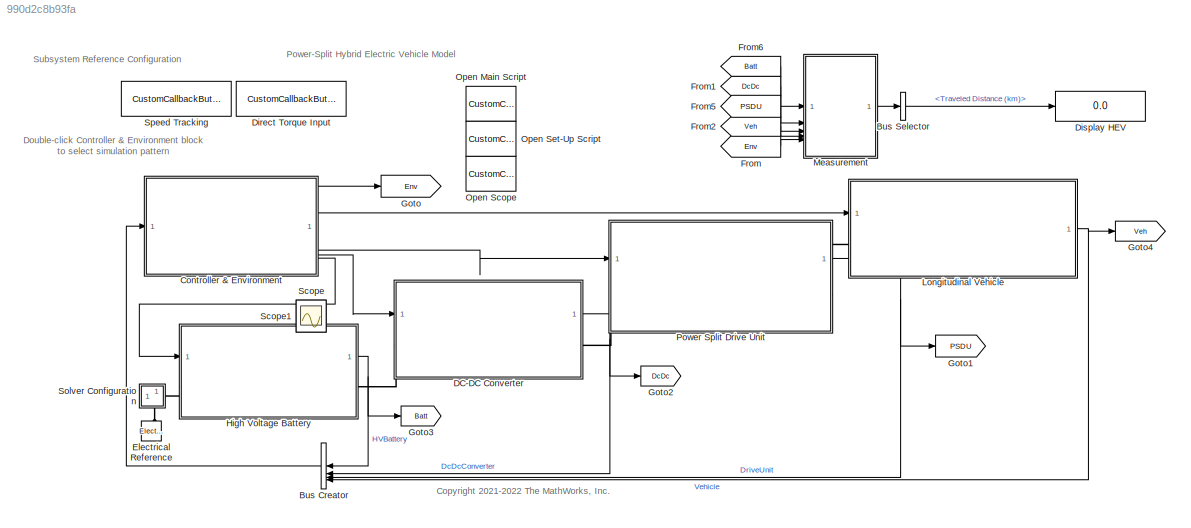
MODEL mdl_990d2c8b93fa
KIND model
CONFIG AbsTol = 1e-3
CONFIG EnableMultiTasking = on
CONFIG FixedStep = auto
CONFIG MaxStep = auto
CONFIG MinStep = auto
CONFIG PostLoadFcn = % Load external input signals\n% based on the referenced subsystem\n% for the Controller & Environment block.\nPowerSplitHEV_system_model_setup\n
CONFIG PreLoadFcn = PowerSplitHEV_params\n\nPowerSplitHEV_DirectInput_selectInput\n
CONFIG RelTol = 1e-3
CONFIG SampleTimeConstraint = Unconstrained
CONFIG SolverName = daessc
CONFIG StartTime = 0.0
CONFIG StopTime = t_end
BLOCK [BusCreator] Bus Creator
  DisplayOption = bar
  InheritFromInputs = on
  Inputs = 4
  NameLocation = top
BLOCK [BusSelector] Bus Selector
  OutputSignals = Traveled Distance (km)
BLOCK [SubSystem] Controller & Environment
  ReferencedSubsystem = PowerSplitHEV_SpeedTracking_refsub
BLOCK [SubSystem] DC-DC Converter
  PortSchema = {"entries":[{"content":{"sides":[{"content":{"connectorIds":["In1","LConn1"]},"type":"ConnectorPlacement.EquallySpacedRectSide","uuid":"9fe8411b-04be-463e-9924-e5b159c802ea"},{"content":{"connectorIds":["RConn1","Out1"],"side":"RIGHT"},"type":"ConnectorPlacement.EquallySpacedRectSide","uuid":"f74ab51b-f871-4eba-ad48-2355a260a50e"},{"content":{"side":"TOP"},"type":"ConnectorPlacement.EquallySpacedR...<+366ch>
  ReferencedSubsystem = DcDcConverterElec_refsub
BLOCK [CustomCallbackButton] Direct Torque Input
  Configuration = {"components":[{"name":"BackgroundImageComponent","settings":{"image":{"size":[0,0],"src":"default","srcOrientation":"Right"},"position":[0,0,1,1]}},{"name":"ButtonStateComponent","settings":{"buttonType":"momentary","clickFcn":"disp(\"Selecting referenced subsystem: \" + ...\n  \"Direct torque input\")\n\nset_param( gcs + \"\/Controller & Environment\", ...\n  \"ReferencedSubsystem\", ...\n  \"Po...<+2057ch>
  CustomBackgroundColor = {"color":[0.9568627451,0.9568627451,0.9568627451],"show":true}
BLOCK [Display] Display HEV
  Decimation = 1
BLOCK [Reference] Electrical Reference  REF=fl_lib/Electrical/Electrical Elements/Electrical Reference
  SourceBlock = fl_lib/Electrical/Electrical Elements/Electrical Reference
  SourceType = Electrical Reference
BLOCK [From] From
  GotoTag = Env
BLOCK [From] From1
  GotoTag = DcDc
BLOCK [From] From2
  GotoTag = Veh
BLOCK [From] From5
  GotoTag = PSDU
BLOCK [From] From6
  GotoTag = Batt
BLOCK [Goto] Goto
  GotoTag = Env
  NameLocation = right
BLOCK [Goto] Goto1
  GotoTag = PSDU
BLOCK [Goto] Goto2
  GotoTag = DcDc
  NameLocation = right
BLOCK [Goto] Goto3
  GotoTag = Batt
  NameLocation = right
BLOCK [Goto] Goto4
  GotoTag = Veh
BLOCK [SubSystem] High Voltage Battery
  OpenFcn = open_system(gcb, "force")
  PortSchema = {"entries":[{"content":{"sides":[{"content":{"connectorIds":["In1","LConn1"]},"type":"ConnectorPlacement.EquallySpacedRectSide","uuid":"9fe8411b-04be-463e-9924-e5b159c802ea"},{"content":{"connectorIds":["RConn1","Out1"],"side":"RIGHT"},"type":"ConnectorPlacement.EquallySpacedRectSide","uuid":"f74ab51b-f871-4eba-ad48-2355a260a50e"},{"content":{"side":"TOP"},"type":"ConnectorPlacement.EquallySpacedR...<+366ch>
  ReferencedSubsystem = BatteryHV_refsub_Basic
BLOCK [SubSystem] Longitudinal Vehicle
  ReferencedSubsystem = Vehicle1D_refsub_Basic
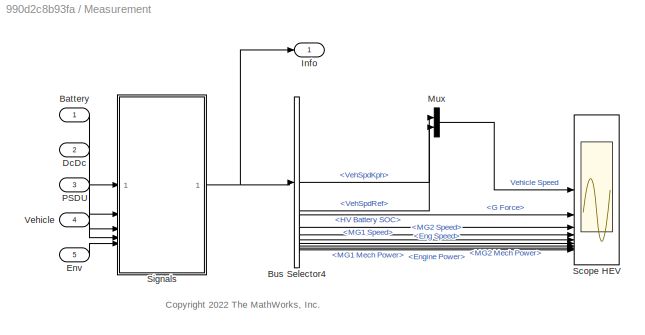
BLOCK [SubSystem] Measurement
BLOCK [Inport] Measurement/Battery
BLOCK [BusSelector] Measurement/Bus Selector4
  OutputSignals = VehSpdKph,VehSpdRef,G Force,HV Battery SOC,MG2 Speed,MG1 Speed,Eng Speed,MG2 Mech Power,MG1 Mech Power,Engine Power
BLOCK [Inport] Measurement/DcDc
  Port = 2
BLOCK [Inport] Measurement/Env
  Port = 5
BLOCK [Outport] Measurement/Info
BLOCK [Mux] Measurement/Mux
  DisplayOption = bar
  Inputs = 2
BLOCK [Inport] Measurement/PSDU
  Port = 3
BLOCK [Scope] Measurement/Scope HEV
  Floating = off
  NumInputPorts = 9
  ScopeSpecificationString = Simulink.scopes.TimeScopeBlockCfg('CurrentConfiguration', extmgr.ConfigurationSet(extmgr.Configuration('Core','General UI',true),extmgr.Configuration('Core','Source UI',true),extmgr.Configuration('Sources','WiredSimulink',true,'DataLoggingVariableName','ScopeData2'),extmgr.Configuration('Visuals','Time Domain',true,'SerializedDisplays',{struct('MinYLimReal','-8.21321','MaxYLimReal','73.9189','YLab...<+6880ch>
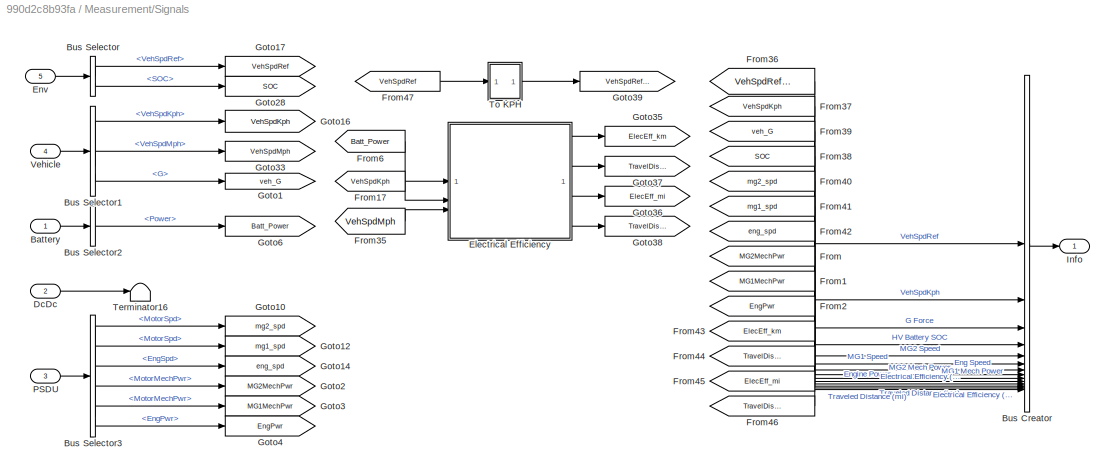
BLOCK [SubSystem] Measurement/Signals
BLOCK [Inport] Measurement/Signals/Battery
BLOCK [BusCreator] Measurement/Signals/Bus Creator
  DisplayOption = bar
  InheritFromInputs = on
  Inputs = 14
BLOCK [BusSelector] Measurement/Signals/Bus Selector
  OutputSignals = VehSpdRef,SOC
BLOCK [BusSelector] Measurement/Signals/Bus Selector1
  OutputSignals = VehSpdKph,VehSpdMph,G
BLOCK [BusSelector] Measurement/Signals/Bus Selector2
  OutputSignals = Power
BLOCK [BusSelector] Measurement/Signals/Bus Selector3
  OutputSignals = mg2.MotorSpd,mg1.MotorSpd,eng.EngSpd,mg2.MotorMechPwr,mg1.MotorMechPwr,eng.EngPwr
BLOCK [Inport] Measurement/Signals/DcDc
  Port = 2
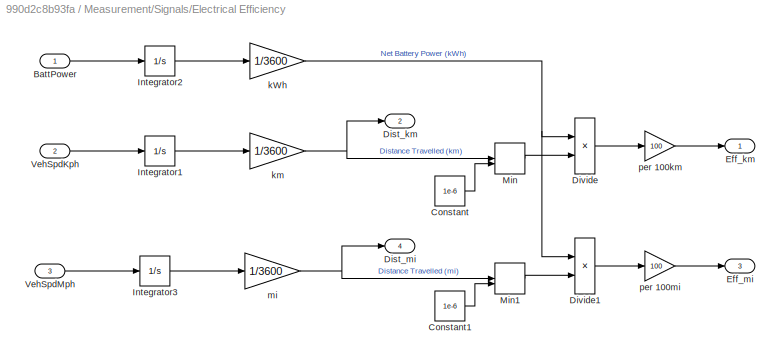
BLOCK [SubSystem] Measurement/Signals/Electrical Efficiency
BLOCK [Inport] Measurement/Signals/Electrical Efficiency/BattPower
  AttributesFormatString = %<Unit>
  NameLocation = left
  Unit = kW
BLOCK [Constant] Measurement/Signals/Electrical Efficiency/Constant
  Value = 1e-6
BLOCK [Constant] Measurement/Signals/Electrical Efficiency/Constant1
  Value = 1e-6
BLOCK [Outport] Measurement/Signals/Electrical Efficiency/Dist_km
  NameLocation = right
  Port = 2
  Unit = km
BLOCK [Outport] Measurement/Signals/Electrical Efficiency/Dist_mi
  NameLocation = right
  Port = 4
  Unit = mi
BLOCK [Product] Measurement/Signals/Electrical Efficiency/Divide
  Inputs = */
BLOCK [Product] Measurement/Signals/Electrical Efficiency/Divide1
  Inputs = */
BLOCK [Outport] Measurement/Signals/Electrical Efficiency/Eff_km
  AttributesFormatString = %<Unit>
  NameLocation = right
BLOCK [Outport] Measurement/Signals/Electrical Efficiency/Eff_mi
  AttributesFormatString = %<Unit>
  NameLocation = right
  Port = 3
BLOCK [Integrator] Measurement/Signals/Electrical Efficiency/Integrator1
  AttributesFormatString = Initial Condition: %<InitialCondition>
BLOCK [Integrator] Measurement/Signals/Electrical Efficiency/Integrator2
  AttributesFormatString = Initial Condition: %<InitialCondition>
BLOCK [Integrator] Measurement/Signals/Electrical Efficiency/Integrator3
  AttributesFormatString = Initial Condition: %<InitialCondition>
BLOCK [MinMax] Measurement/Signals/Electrical Efficiency/Min
  Function = max
  Inputs = 2
BLOCK [MinMax] Measurement/Signals/Electrical Efficiency/Min1
  Function = max
  Inputs = 2
BLOCK [Inport] Measurement/Signals/Electrical Efficiency/VehSpdKph
  AttributesFormatString = %<Unit>
  NameLocation = left
  Port = 2
  Unit = km/hr
BLOCK [Inport] Measurement/Signals/Electrical Efficiency/VehSpdMph
  AttributesFormatString = %<Unit>
  NameLocation = left
  Port = 3
  Unit = mph
BLOCK [Gain] Measurement/Signals/Electrical Efficiency/kWh
  Gain = 1/3600
BLOCK [Gain] Measurement/Signals/Electrical Efficiency/km
  Gain = 1/3600
BLOCK [Gain] Measurement/Signals/Electrical Efficiency/mi
  Gain = 1/3600
BLOCK [Gain] Measurement/Signals/Electrical Efficiency/per 100km
  Gain = 100
BLOCK [Gain] Measurement/Signals/Electrical Efficiency/per 100mi
  Gain = 100
BLOCK [Inport] Measurement/Signals/Env
  Port = 5
BLOCK [From] Measurement/Signals/From
  GotoTag = MG2MechPwr
BLOCK [From] Measurement/Signals/From1
  GotoTag = MG1MechPwr
BLOCK [From] Measurement/Signals/From17
  GotoTag = VehSpdKph
BLOCK [From] Measurement/Signals/From2
  GotoTag = EngPwr
BLOCK [From] Measurement/Signals/From35
  GotoTag = VehSpdMph
BLOCK [From] Measurement/Signals/From36
  GotoTag = VehSpdRefKph
BLOCK [From] Measurement/Signals/From37
  GotoTag = VehSpdKph
BLOCK [From] Measurement/Signals/From38
  GotoTag = SOC
BLOCK [From] Measurement/Signals/From39
  GotoTag = veh_G
BLOCK [From] Measurement/Signals/From40
  GotoTag = mg2_spd
BLOCK [From] Measurement/Signals/From41
  GotoTag = mg1_spd
BLOCK [From] Measurement/Signals/From42
  GotoTag = eng_spd
BLOCK [From] Measurement/Signals/From43
  GotoTag = ElecEff_km
BLOCK [From] Measurement/Signals/From44
  GotoTag = TravelDist_km
BLOCK [From] Measurement/Signals/From45
  GotoTag = ElecEff_mi
BLOCK [From] Measurement/Signals/From46
  GotoTag = TravelDist_mi
BLOCK [From] Measurement/Signals/From47
  GotoTag = VehSpdRef
BLOCK [From] Measurement/Signals/From6
  GotoTag = Batt_Power
BLOCK [Goto] Measurement/Signals/Goto1
  GotoTag = veh_G
BLOCK [Goto] Measurement/Signals/Goto10
  GotoTag = mg2_spd
  NameLocation = right
BLOCK [Goto] Measurement/Signals/Goto12
  GotoTag = mg1_spd
  NameLocation = right
BLOCK [Goto] Measurement/Signals/Goto14
  GotoTag = eng_spd
  NameLocation = right
BLOCK [Goto] Measurement/Signals/Goto16
  GotoTag = VehSpdKph
BLOCK [Goto] Measurement/Signals/Goto17
  GotoTag = VehSpdRef
BLOCK [Goto] Measurement/Signals/Goto2
  GotoTag = MG2MechPwr
  NameLocation = right
BLOCK [Goto] Measurement/Signals/Goto28
  GotoTag = SOC
BLOCK [Goto] Measurement/Signals/Goto3
  GotoTag = MG1MechPwr
  NameLocation = right
BLOCK [Goto] Measurement/Signals/Goto33
  GotoTag = VehSpdMph
BLOCK [Goto] Measurement/Signals/Goto35
  GotoTag = ElecEff_km
BLOCK [Goto] Measurement/Signals/Goto36
  GotoTag = ElecEff_mi
BLOCK [Goto] Measurement/Signals/Goto37
  GotoTag = TravelDist_km
BLOCK [Goto] Measurement/Signals/Goto38
  GotoTag = TravelDist_mi
BLOCK [Goto] Measurement/Signals/Goto39
  GotoTag = VehSpdRefKph
BLOCK [Goto] Measurement/Signals/Goto4
  GotoTag = EngPwr
  NameLocation = right
BLOCK [Goto] Measurement/Signals/Goto6
  GotoTag = Batt_Power
BLOCK [Outport] Measurement/Signals/Info
BLOCK [Inport] Measurement/Signals/PSDU
  Port = 3
BLOCK [Terminator] Measurement/Signals/Terminator16
  NameLocation = right
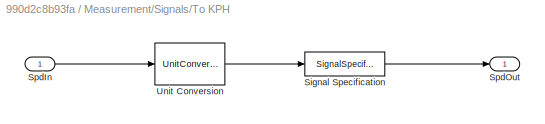
BLOCK [SubSystem] Measurement/Signals/To KPH
  ShowPortLabels = none
BLOCK [SignalSpecification] Measurement/Signals/To KPH/Signal Specification
  Unit = km/hr
BLOCK [Inport] Measurement/Signals/To KPH/SpdIn
  AttributesFormatString = %<Unit>
  Unit = m/s
BLOCK [Outport] Measurement/Signals/To KPH/SpdOut
  Unit = km/hr
BLOCK [UnitConversion] Measurement/Signals/To KPH/Unit Conversion
BLOCK [Inport] Measurement/Signals/Vehicle
  Port = 4
BLOCK [Inport] Measurement/Vehicle
  Port = 4
BLOCK [CustomCallbackButton] Open Main Script
  Configuration = {"components":[{"name":"BackgroundImageComponent","settings":{"image":{"size":[0,0],"src":"default","srcOrientation":"Right"},"position":[0,0,1,1]}},{"name":"ButtonStateComponent","settings":{"buttonType":"momentary","clickFcn":"edit(\"PowerSplitHEV_main_script\")\n","onValue":1,"position":[0,0,1,1],"pressDelay":"500","pressFcn":"","repeatInterval":"0","states":[{"horizontalAlignment":"center","im...<+1756ch>
  CustomBackgroundColor = {"color":[0.9568627451,0.9568627451,0.9568627451],"show":true}
  NameLocation = right
BLOCK [CustomCallbackButton] Open Scope
  Configuration = {"components":[{"name":"BackgroundImageComponent","settings":{"image":{"size":[0,0],"src":"default","srcOrientation":"Right"},"position":[0,0,1,1]}},{"name":"ButtonStateComponent","settings":{"buttonType":"momentary","clickFcn":"open_system(gcs + \"\/Measurement\/Scope HEV\")","onValue":1,"position":[0,0,1,1],"pressDelay":"500","pressFcn":"","repeatInterval":"0","states":[{"horizontalAlignment":"c...<+1766ch>
  CustomBackgroundColor = {"color":[0.9568627451,0.9568627451,0.9568627451],"show":true}
  NameLocation = right
BLOCK [CustomCallbackButton] Open Set-Up Script
  Configuration = {"components":[{"name":"BackgroundImageComponent","settings":{"image":{"size":[0,0],"src":"default","srcOrientation":"Right"},"position":[0,0,1,1]}},{"name":"ButtonStateComponent","settings":{"buttonType":"momentary","clickFcn":"edit(\"PowerSplitHEV_params\")\n","onValue":1,"position":[0,0,1,1],"pressDelay":"500","pressFcn":"","repeatInterval":"0","states":[{"horizontalAlignment":"center","image":...<+1751ch>
  CustomBackgroundColor = {"color":[0.9568627451,0.9568627451,0.9568627451],"show":true}
  NameLocation = right
BLOCK [SubSystem] Power Split Drive Unit
  PortSchema = {"entries":[{"content":{"sides":[{"content":{"connectorIds":["In1","LConn1"]},"type":"ConnectorPlacement.EquallySpacedRectSide","uuid":"974aedaf-bb26-4d59-a293-409346043c39"},{"content":{"connectorIds":["RConn1","Out1"],"side":"RIGHT"},"type":"ConnectorPlacement.EquallySpacedRectSide","uuid":"12ed2c12-3442-42d2-9925-d6af8f0a29b3"},{"content":{"side":"TOP"},"type":"ConnectorPlacement.EquallySpacedR...<+366ch>
  ReferencedSubsystem = PowerSplitDriveUnit_refsub_Basic
BLOCK [Scope] Scope
  Floating = off
  IOType = viewer
  NumInputPorts = 1
  ScopeSpecificationString = Simulink.scopes.TimeScopeBlockCfg('CurrentConfiguration', extmgr.ConfigurationSet(extmgr.Configuration('Core','General UI',true),extmgr.Configuration('Core','Source UI',true),extmgr.Configuration('Sources','WiredSimulink',true,'DataLoggingVariableName','ScopeData1'),extmgr.Configuration('Visuals','Time Domain',true,'SerializedDisplays',{struct('MinYLimReal','-1.01075','MaxYLimReal','0.74923','YLab...<+1402ch>
BLOCK [Scope] Scope1
  Floating = off
  IOType = viewer
  NumInputPorts = 1
  ScopeSpecificationString = Simulink.scopes.TimeScopeBlockCfg('CurrentConfiguration', extmgr.ConfigurationSet(extmgr.Configuration('Core','General UI',true),extmgr.Configuration('Core','Source UI',true),extmgr.Configuration('Sources','WiredSimulink',true,'DataLoggingVariableName','ScopeData2'),extmgr.Configuration('Visuals','Time Domain',true,'SerializedDisplays',{struct('MinYLimReal','-0.10303','MaxYLimReal','0.07637','YLab...<+1533ch>
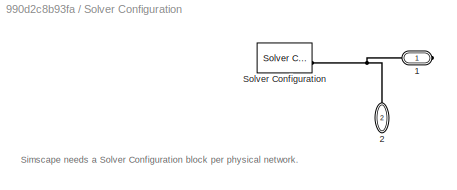
BLOCK [SubSystem] Solver Configuration
  NameLocation = top
  PortSchema = {"entries":[{"content":{"sides":[{"content":{"connectorIds":[]},"type":"ConnectorPlacement.EquallySpacedRectSide","uuid":"4a7e26c2-e9e9-4fea-b605-533b1a682be7"},{"content":{"connectorIds":["RConn1"],"side":"RIGHT"},"type":"ConnectorPlacement.EquallySpacedRectSide","uuid":"0210e324-555e-4372-b836-fcc8ab23e933"},{"content":{"connectorIds":[],"side":"TOP"},"type":"ConnectorPlacement.EquallySpacedRect...<+391ch>
  ShowPortLabels = none
BLOCK [PMIOPort] Solver Configuration/1
  Side = Right
BLOCK [PMIOPort] Solver Configuration/2
  NameLocation = left
  Port = 2
  Side = Right
BLOCK [Reference] Solver Configuration/Solver Configuration  REF=nesl_utility/Solver
Configuration
  AttributesFormatString = Local solver %<UseLocalSolver>
  SourceBlock = nesl_utility/Solver\nConfiguration
  SourceType = Solver\nConfiguration
BLOCK [CustomCallbackButton] Speed Tracking
  Configuration = {"components":[{"name":"BackgroundImageComponent","settings":{"image":{"size":[0,0],"src":"default","srcOrientation":"Right"},"position":[0,0,1,1]}},{"name":"ButtonStateComponent","settings":{"buttonType":"momentary","clickFcn":"disp(\"Selecting referenced subsystem: \" + ...\n  \"Speed tracking\")\n\nset_param( gcs + \"\/Controller & Environment\", ...\n  \"ReferencedSubsystem\", ...\n  \"PowerSp...<+2059ch>
  CustomBackgroundColor = {"color":[0.9568627451,0.9568627451,0.9568627451],"show":true}
ANNOTATION (root): <copyright redacted>
ANNOTATION (root): Power-Split Hybrid Electric Vehicle Model
ANNOTATION (root): Double-click Controller & Environment block to select simulation pattern
ANNOTATION (root): Subsystem Reference Configuration
ANNOTATION Measurement: <copyright redacted>
ANNOTATION Solver Configuration: Simscape needs a Solver Configuration block per physical network.
LINE Bus Creator:1 -> Controller & Environment:1
LINE Bus Selector:1 -> Display HEV:1
LINE Controller & Environment:1 -> Goto:1
LINE Controller & Environment:2 -> Longitudinal Vehicle:1
LINE Controller & Environment:3 -> Power Split Drive Unit:1
LINE Controller & Environment:4 -> DC-DC Converter:1
LINE Controller & Environment:5 -> High Voltage Battery:1
NET DC-DC Converter:1 -> Bus Creator:2, Goto2:1
LINE From1:1 -> Measurement:2
LINE From2:1 -> Measurement:4
LINE From5:1 -> Measurement:3
LINE From6:1 -> Measurement:1
LINE From:1 -> Measurement:5
NET High Voltage Battery:1 -> Bus Creator:1, Goto3:1
NET Longitudinal Vehicle:1 -> Bus Creator:4, Goto4:1
LINE Measurement/Battery:1 -> Measurement/Signals:1
LINE Measurement/Bus Selector4:1 -> Measurement/Mux:1
LINE Measurement/Bus Selector4:10 -> Measurement/Scope HEV:9
LINE Measurement/Bus Selector4:2 -> Measurement/Mux:2
LINE Measurement/Bus Selector4:3 -> Measurement/Scope HEV:2
LINE Measurement/Bus Selector4:4 -> Measurement/Scope HEV:3
LINE Measurement/Bus Selector4:5 -> Measurement/Scope HEV:4
LINE Measurement/Bus Selector4:6 -> Measurement/Scope HEV:5
LINE Measurement/Bus Selector4:7 -> Measurement/Scope HEV:6
LINE Measurement/Bus Selector4:8 -> Measurement/Scope HEV:7
LINE Measurement/Bus Selector4:9 -> Measurement/Scope HEV:8
LINE Measurement/DcDc:1 -> Measurement/Signals:2
LINE Measurement/Env:1 -> Measurement/Signals:5
LINE Measurement/Mux:1 -> Measurement/Scope HEV:1
LINE Measurement/PSDU:1 -> Measurement/Signals:3
LINE Measurement/Signals/Battery:1 -> Measurement/Signals/Bus Selector2:1
LINE Measurement/Signals/Bus Creator:1 -> Measurement/Signals/Info:1
LINE Measurement/Signals/Bus Selector1:1 -> Measurement/Signals/Goto16:1
LINE Measurement/Signals/Bus Selector1:2 -> Measurement/Signals/Goto33:1
LINE Measurement/Signals/Bus Selector1:3 -> Measurement/Signals/Goto1:1
LINE Measurement/Signals/Bus Selector2:1 -> Measurement/Signals/Goto6:1
LINE Measurement/Signals/Bus Selector3:1 -> Measurement/Signals/Goto10:1
LINE Measurement/Signals/Bus Selector3:2 -> Measurement/Signals/Goto12:1
LINE Measurement/Signals/Bus Selector3:3 -> Measurement/Signals/Goto14:1
LINE Measurement/Signals/Bus Selector3:4 -> Measurement/Signals/Goto2:1
LINE Measurement/Signals/Bus Selector3:5 -> Measurement/Signals/Goto3:1
LINE Measurement/Signals/Bus Selector3:6 -> Measurement/Signals/Goto4:1
LINE Measurement/Signals/Bus Selector:1 -> Measurement/Signals/Goto17:1
LINE Measurement/Signals/Bus Selector:2 -> Measurement/Signals/Goto28:1
LINE Measurement/Signals/DcDc:1 -> Measurement/Signals/Terminator16:1
LINE Measurement/Signals/Electrical Efficiency/BattPower:1 -> Measurement/Signals/Electrical Efficiency/Integrator2:1
LINE Measurement/Signals/Electrical Efficiency/Constant1:1 -> Measurement/Signals/Electrical Efficiency/Min1:2
LINE Measurement/Signals/Electrical Efficiency/Constant:1 -> Measurement/Signals/Electrical Efficiency/Min:2
LINE Measurement/Signals/Electrical Efficiency/Divide1:1 -> Measurement/Signals/Electrical Efficiency/per 100mi:1
LINE Measurement/Signals/Electrical Efficiency/Divide:1 -> Measurement/Signals/Electrical Efficiency/per 100km:1
LINE Measurement/Signals/Electrical Efficiency/Integrator1:1 -> Measurement/Signals/Electrical Efficiency/km:1
LINE Measurement/Signals/Electrical Efficiency/Integrator2:1 -> Measurement/Signals/Electrical Efficiency/kWh:1
LINE Measurement/Signals/Electrical Efficiency/Integrator3:1 -> Measurement/Signals/Electrical Efficiency/mi:1
LINE Measurement/Signals/Electrical Efficiency/Min1:1 -> Measurement/Signals/Electrical Efficiency/Divide1:2
LINE Measurement/Signals/Electrical Efficiency/Min:1 -> Measurement/Signals/Electrical Efficiency/Divide:2
LINE Measurement/Signals/Electrical Efficiency/VehSpdKph:1 -> Measurement/Signals/Electrical Efficiency/Integrator1:1
LINE Measurement/Signals/Electrical Efficiency/VehSpdMph:1 -> Measurement/Signals/Electrical Efficiency/Integrator3:1
NET Measurement/Signals/Electrical Efficiency/kWh:1 -> Measurement/Signals/Electrical Efficiency/Divide1:1, Measurement/Signals/Electrical Efficiency/Divide:1
NET Measurement/Signals/Electrical Efficiency/km:1 -> Measurement/Signals/Electrical Efficiency/Dist_km:1, Measurement/Signals/Electrical Efficiency/Min:1
NET Measurement/Signals/Electrical Efficiency/mi:1 -> Measurement/Signals/Electrical Efficiency/Dist_mi:1, Measurement/Signals/Electrical Efficiency/Min1:1
LINE Measurement/Signals/Electrical Efficiency/per 100km:1 -> Measurement/Signals/Electrical Efficiency/Eff_km:1
LINE Measurement/Signals/Electrical Efficiency/per 100mi:1 -> Measurement/Signals/Electrical Efficiency/Eff_mi:1
LINE Measurement/Signals/Electrical Efficiency:1 -> Measurement/Signals/Goto35:1
LINE Measurement/Signals/Electrical Efficiency:2 -> Measurement/Signals/Goto37:1
LINE Measurement/Signals/Electrical Efficiency:3 -> Measurement/Signals/Goto36:1
LINE Measurement/Signals/Electrical Efficiency:4 -> Measurement/Signals/Goto38:1
LINE Measurement/Signals/Env:1 -> Measurement/Signals/Bus Selector:1
LINE Measurement/Signals/From17:1 -> Measurement/Signals/Electrical Efficiency:2
LINE Measurement/Signals/From1:1 -> Measurement/Signals/Bus Creator:9
LINE Measurement/Signals/From2:1 -> Measurement/Signals/Bus Creator:10
LINE Measurement/Signals/From35:1 -> Measurement/Signals/Electrical Efficiency:3
LINE Measurement/Signals/From36:1 -> Measurement/Signals/Bus Creator:1
LINE Measurement/Signals/From37:1 -> Measurement/Signals/Bus Creator:2
LINE Measurement/Signals/From38:1 -> Measurement/Signals/Bus Creator:4
LINE Measurement/Signals/From39:1 -> Measurement/Signals/Bus Creator:3
LINE Measurement/Signals/From40:1 -> Measurement/Signals/Bus Creator:5
LINE Measurement/Signals/From41:1 -> Measurement/Signals/Bus Creator:6
LINE Measurement/Signals/From42:1 -> Measurement/Signals/Bus Creator:7
LINE Measurement/Signals/From43:1 -> Measurement/Signals/Bus Creator:11
LINE Measurement/Signals/From44:1 -> Measurement/Signals/Bus Creator:12
LINE Measurement/Signals/From45:1 -> Measurement/Signals/Bus Creator:13
LINE Measurement/Signals/From46:1 -> Measurement/Signals/Bus Creator:14
LINE Measurement/Signals/From47:1 -> Measurement/Signals/To KPH:1
LINE Measurement/Signals/From6:1 -> Measurement/Signals/Electrical Efficiency:1
LINE Measurement/Signals/From:1 -> Measurement/Signals/Bus Creator:8
LINE Measurement/Signals/PSDU:1 -> Measurement/Signals/Bus Selector3:1
LINE Measurement/Signals/To KPH/Signal Specification:1 -> Measurement/Signals/To KPH/SpdOut:1
LINE Measurement/Signals/To KPH/SpdIn:1 -> Measurement/Signals/To KPH/Unit Conversion:1
LINE Measurement/Signals/To KPH/Unit Conversion:1 -> Measurement/Signals/To KPH/Signal Specification:1
LINE Measurement/Signals/To KPH:1 -> Measurement/Signals/Goto39:1
LINE Measurement/Signals/Vehicle:1 -> Measurement/Signals/Bus Selector1:1
NET Measurement/Signals:1 -> Measurement/Bus Selector4:1, Measurement/Info:1
LINE Measurement/Vehicle:1 -> Measurement/Signals:4
LINE Measurement:1 -> Bus Selector:1
NET Power Split Drive Unit:1 -> Bus Creator:3, Goto1:1
PLINE DC-DC Converter:LConn1 -- High Voltage Battery:RConn1
PLINE DC-DC Converter:RConn1 -- Power Split Drive Unit:LConn1
PLINE Electrical Reference:LConn1 -- Solver Configuration:RConn2
PLINE High Voltage Battery:LConn1 -- Solver Configuration:RConn1
PLINE Longitudinal Vehicle:LConn1 -- Power Split Drive Unit:RConn1
PNET net1: Solver Configuration/1:RConn1 -- Solver Configuration/2:RConn1 -- Solver Configuration/Solver Configuration:RConn1
note: NET lines group one-source signal fan-out (src -> all destinations, sorted); 1:1 wires keep LINE; PNET lines group multi-terminal physical nets as a canonical sorted terminal list (undirected conserving connections); 2-terminal nets keep the pairwise PLINE form
